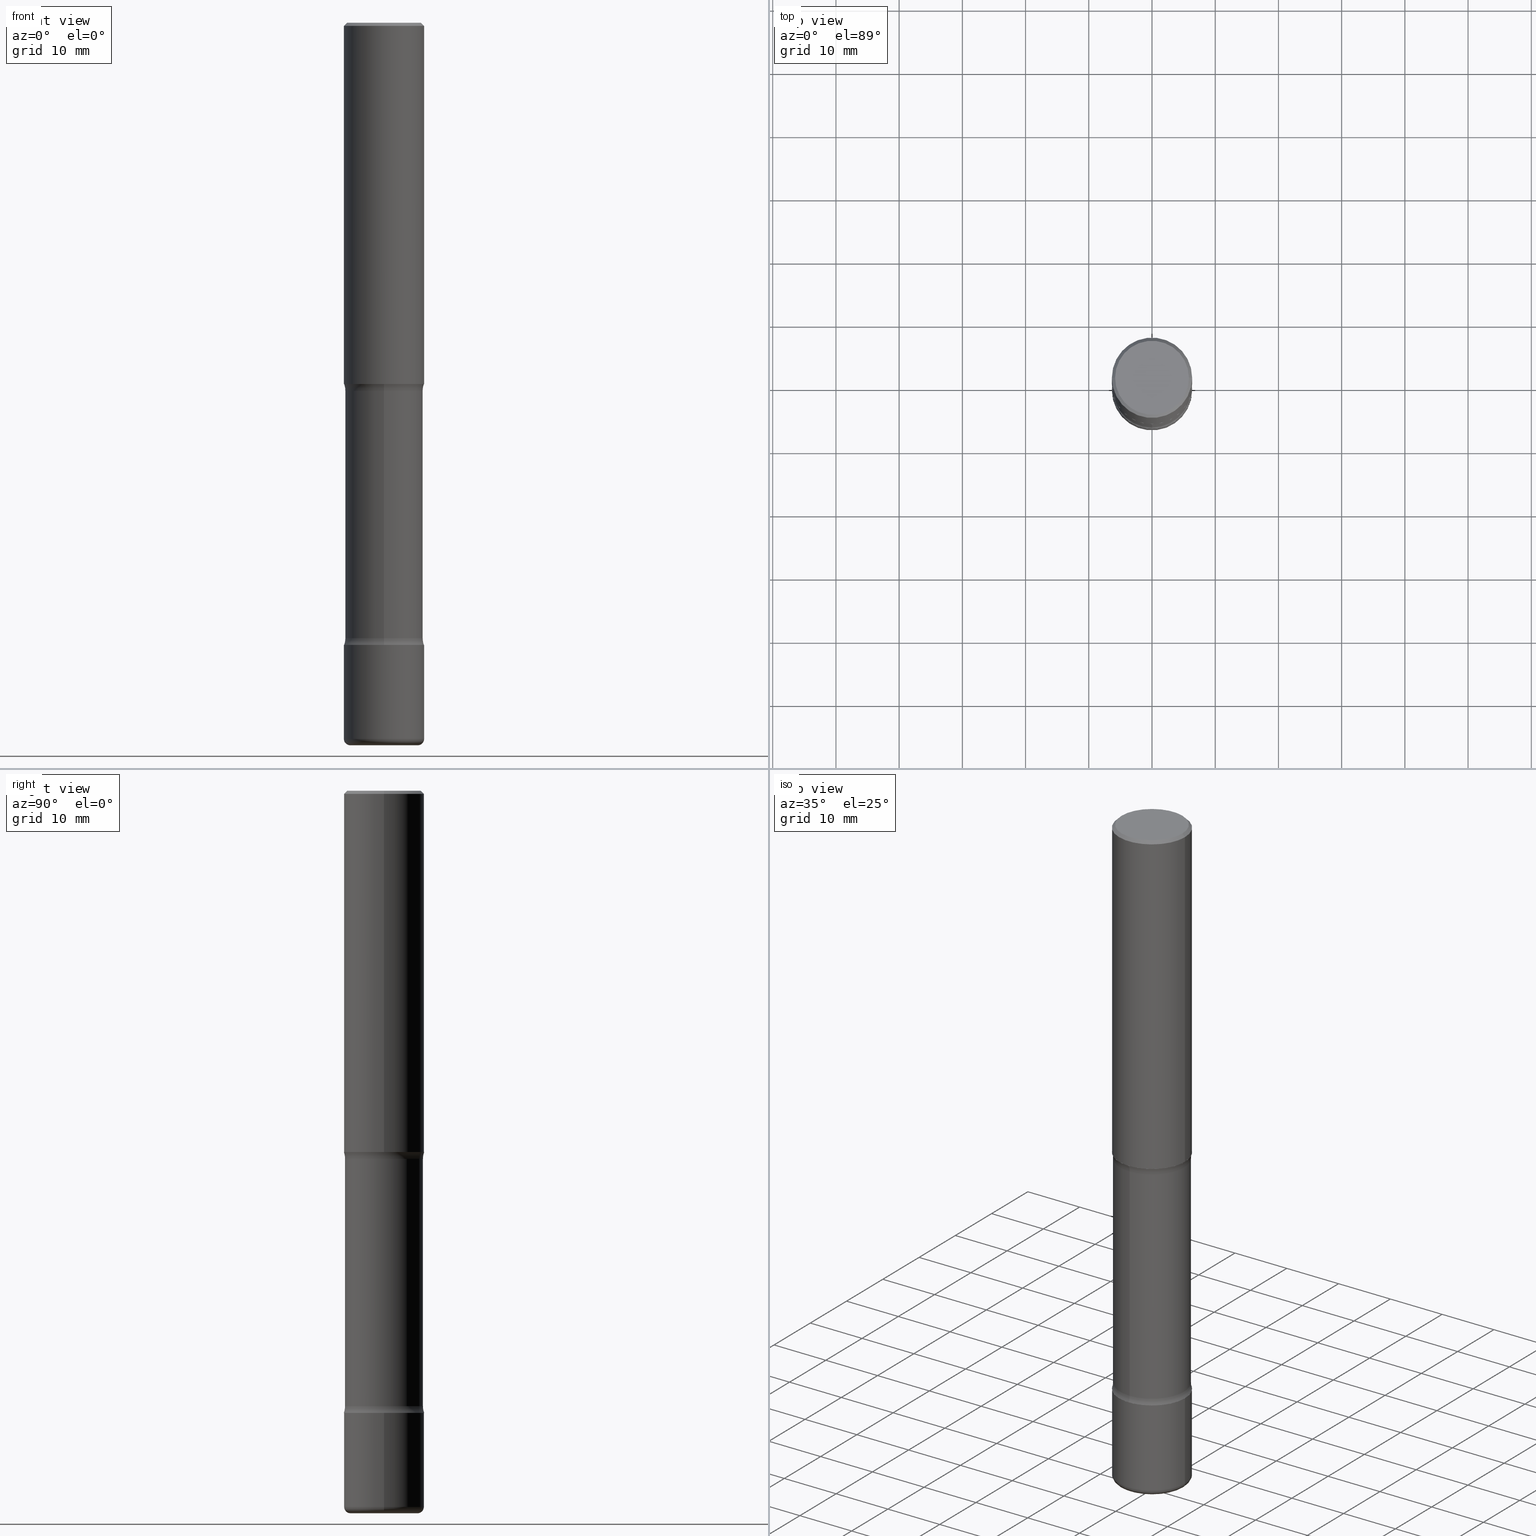
[diagram: canonical four-view strip — front | top / right | iso, engineering-drawing reading convention]
A machine part, canonical four-view strip (front | top / right | iso — engineering-drawing reading convention). The complete STEP part file that produces these views, byte-faithful:
ISO-10303-21;
HEADER;
FILE_DESCRIPTION (( 'STEP AP203' ),
    '1' );
FILE_NAME ('36787.STEP',
    '2024-03-02T00:02:37',
    ( '' ),
    ( '' ),
    'SwSTEP 2.0',
    'SolidWorks 2023',
    '' );
FILE_SCHEMA (( 'CONFIG_CONTROL_DESIGN' ));
ENDSEC;

DATA;
#1 = ORIENTED_EDGE ( 'NONE', *, *, #154, .T. ) ;
#2 = DIRECTION ( 'NONE',  ( -1.000000000000000000, 6.982962677686265922E-15, -4.876176775795935793E-29 ) ) ;
#3 = APPROVAL ( #60, 'UNSPECIFIED' ) ;
#4 = COORDINATED_UNIVERSAL_TIME_OFFSET ( 5, 0, .BEHIND. ) ;
#5 = CARTESIAN_POINT ( 'NONE',  ( 5.320450357182282484E-29, -8.414510736218954380E-15, -2.292646805273080179 ) ) ;
#6 = CLOSED_SHELL ( 'NONE', ( #24, #369, #134, #465, #235, #65 ) ) ;
#7 = AXIS2_PLACEMENT_3D ( 'NONE', #491, #105, #68 ) ;
#8 = EDGE_LOOP ( 'NONE', ( #426, #559, #440, #49 ) ) ;
#9 = PERSON_AND_ORGANIZATION_ROLE ( 'creator' ) ;
#10 = CARTESIAN_POINT ( 'NONE',  ( 9.363764719991543116E-29, -1.339224012218709560E-14, -3.832353194726919376 ) ) ;
#11 = ORIENTED_EDGE ( 'NONE', *, *, #502, .F. ) ;
#12 = COORDINATED_UNIVERSAL_TIME_OFFSET ( 5, 0, .BEHIND. ) ;
#13 = APPLICATION_CONTEXT ( 'configuration controlled 3d designs of mechanical parts and assemblies' ) ;
#14 = EDGE_LOOP ( 'NONE', ( #254, #92, #415, #224 ) ) ;
#15 = DIRECTION ( 'NONE',  ( 2.636232731993832963E-29, -3.218296539476719458E-15, -1.000000000000000000 ) ) ;
#16 = PERSON_AND_ORGANIZATION ( #231, #23 ) ;
#17 = DIRECTION ( 'NONE',  ( 1.000000000000000000, -6.982962677686265922E-15, 4.876176775795935793E-29 ) ) ;
#18 = CLOSED_SHELL ( 'NONE', ( #401, #363, #109, #371, #342, #302 ) ) ;
#19 = ORIENTED_EDGE ( 'NONE', *, *, #470, .F. ) ;
#20 = ADVANCED_FACE ( 'NONE', ( #144 ), #56, .F. ) ;
#21 = AXIS2_PLACEMENT_3D ( 'NONE', #211, #388, #265 ) ;
#22 = CIRCLE ( 'NONE', #173, 0.2500000000000000555 ) ;
#23 = ORGANIZATION ( 'UNSPECIFIED', 'UNSPECIFIED', '' ) ;
#24 = ADVANCED_FACE ( 'NONE', ( #71 ), #364, .T. ) ;
#25 = ORIENTED_EDGE ( 'NONE', *, *, #296, .F. ) ;
#26 = CYLINDRICAL_SURFACE ( 'NONE', #288, 0.2500000000000000555 ) ;
#27 = LINE ( 'NONE', #223, #238 ) ;
#28 = EDGE_LOOP ( 'NONE', ( #230, #312, #317, #188 ) ) ;
#29 = DIRECTION ( 'NONE',  ( 1.000000000000000000, -6.982962677686266711E-15, 4.883557194083112901E-29 ) ) ;
#30 = CARTESIAN_POINT ( 'NONE',  ( 0.000000000000000000, 0.000000000000000000, 0.000000000000000000 ) ) ;
#31 = VECTOR ( 'NONE', #135, 39.37007874015748143 ) ;
#32 = AXIS2_PLACEMENT_3D ( 'NONE', #425, #334, #243 ) ;
#33 = CARTESIAN_POINT ( 'NONE',  ( 5.502304813916556222E-29, -7.855833012397076871E-15, -2.249999999999999556 ) ) ;
#34 = DIRECTION ( 'NONE',  ( -2.445468806185136597E-29, 3.491481338843145583E-15, 1.000000000000000000 ) ) ;
#35 = DIRECTION ( 'NONE',  ( 6.982962677686265922E-15, 1.000000000000000000, -3.218296539476719064E-15 ) ) ;
#36 = UNCERTAINTY_MEASURE_WITH_UNIT (LENGTH_MEASURE( 1.000000000000000082E-05 ), #379, 'distance_accuracy_value', 'NONE');
#37 = DIRECTION ( 'NONE',  ( 2.636232731993832963E-29, -3.218296539476719458E-15, -1.000000000000000000 ) ) ;
#38 = APPLICATION_CONTEXT ( 'configuration controlled 3d designs of mechanical parts and assemblies' ) ;
#39 = CIRCLE ( 'NONE', #116, 0.03999999999999977879 ) ;
#40 = EDGE_LOOP ( 'NONE', ( #221, #1 ) ) ;
#41 =( NAMED_UNIT ( * ) SI_UNIT ( $, .STERADIAN. ) SOLID_ANGLE_UNIT ( ) );
#42 = CARTESIAN_POINT ( 'NONE',  ( -0.2299999999999998435, 1.640996229256271730E-15, -1.135408596578605280E-29 ) ) ;
#43 = DIRECTION ( 'NONE',  ( 6.982962677686265922E-15, 1.000000000000000000, -2.185478394931410180E-15 ) ) ;
#44 = DIRECTION ( 'NONE',  ( 1.000000000000000000, -6.982962677686269077E-15, 0.000000000000000000 ) ) ;
#45 = PRODUCT_RELATED_PRODUCT_CATEGORY ( 'detail', '', ( #395 ) ) ;
#46 = CARTESIAN_POINT ( 'NONE',  ( 1.090679087558570850E-28, -1.557200677124043030E-14, -4.459999999999999964 ) ) ;
#47 = AXIS2_PLACEMENT_3D ( 'NONE', #143, #316, #220 ) ;
#48 = VECTOR ( 'NONE', #81, 39.37007874015748143 ) ;
#49 = ORIENTED_EDGE ( 'NONE', *, *, #380, .F. ) ;
#50 = PLANE ( 'NONE',  #21 ) ;
#51 = VERTEX_POINT ( 'NONE', #321 ) ;
#52 = EDGE_CURVE ( 'NONE', #524, #446, #418, .T. ) ;
#53 = CARTESIAN_POINT ( 'NONE',  ( 0.2500000000000000000, -1.745740669421566678E-15, 1.219044193948983948E-29 ) ) ;
#54 = VERTEX_POINT ( 'NONE', #200 ) ;
#55 = CALENDAR_DATE ( 2024, 1, 3 ) ;
#56 = TOROIDAL_SURFACE ( 'NONE', #120, 0.3675000000000003264, 0.1250000000000000555 ) ;
#57 = CONICAL_SURFACE ( 'NONE', #366, 0.2499999999999998890, 0.7853981633974480570 ) ;
#58 = ORIENTED_EDGE ( 'NONE', *, *, #154, .F. ) ;
#59 = PRODUCT_DEFINITION_FORMATION_WITH_SPECIFIED_SOURCE ( 'ANY', '', #395, .NOT_KNOWN. ) ;
#60 = APPROVAL_STATUS ( 'not_yet_approved' ) ;
#61 = CARTESIAN_POINT ( 'NONE',  ( -0.2500000000000000555, 1.776356839400250859E-15, -1.229733772563726866E-29 ) ) ;
#62 = EDGE_LOOP ( 'NONE', ( #536, #19 ) ) ;
#63 = COORDINATED_UNIVERSAL_TIME_OFFSET ( 5, 0, .BEHIND. ) ;
#64 = FACE_OUTER_BOUND ( 'NONE', #62, .T. ) ;
#65 = ADVANCED_FACE ( 'NONE', ( #73 ), #195, .T. ) ;
#66 = ORIENTED_EDGE ( 'NONE', *, *, #168, .T. ) ;
#67 = DIRECTION ( 'NONE',  ( 0.000000000000000000, 0.000000000000000000, 1.000000000000000000 ) ) ;
#68 = DIRECTION ( 'NONE',  ( 1.000000000000000000, -6.982962677686265922E-15, 0.000000000000000000 ) ) ;
#69 = DIRECTION ( 'NONE',  ( 2.636232731993832963E-29, -3.218296539476719458E-15, -1.000000000000000000 ) ) ;
#70 = CARTESIAN_POINT ( 'NONE',  ( 0.2500000000000001110, -9.601573681818645126E-15, -2.249999999999999556 ) ) ;
#71 = FACE_OUTER_BOUND ( 'NONE', #331, .T. ) ;
#72 = LINE ( 'NONE', #537, #328 ) ;
#73 = FACE_OUTER_BOUND ( 'NONE', #387, .T. ) ;
#74 = FACE_OUTER_BOUND ( 'NONE', #435, .T. ) ;
#75 = FACE_OUTER_BOUND ( 'NONE', #458, .T. ) ;
#76 = AXIS2_PLACEMENT_3D ( 'NONE', #343, #518, #386 ) ;
#77 = AXIS2_PLACEMENT_3D ( 'NONE', #390, #67, #304 ) ;
#78 = DIRECTION ( 'NONE',  ( -2.445468806185136597E-29, 3.491481338843145583E-15, 1.000000000000000000 ) ) ;
#79 = EDGE_CURVE ( 'NONE', #179, #51, #336, .T. ) ;
#80 = CARTESIAN_POINT ( 'NONE',  ( -2.521233014180945442E-15, -0.3675000000000136491, -3.832353194726918488 ) ) ;
#81 = DIRECTION ( 'NONE',  ( 2.636232731993832963E-29, -3.218296539476719458E-15, -1.000000000000000000 ) ) ;
#82 = FACE_OUTER_BOUND ( 'NONE', #308, .T. ) ;
#83 =( NAMED_UNIT ( * ) PLANE_ANGLE_UNIT ( ) SI_UNIT ( $, .RADIAN. ) );
#84 = EDGE_CURVE ( 'NONE', #140, #54, #111, .T. ) ;
#85 = DIRECTION ( 'NONE',  ( -2.445468806185136597E-29, 3.491481338843145583E-15, 1.000000000000000000 ) ) ;
#86 = EDGE_LOOP ( 'NONE', ( #273, #403 ) ) ;
#87 = CARTESIAN_POINT ( 'NONE',  ( -1.689397631951189894E-15, -0.2425000000000088196, -2.292646805273079735 ) ) ;
#88 = CIRCLE ( 'NONE', #410, 0.2425000000000003542 ) ;
#89 = AXIS2_PLACEMENT_3D ( 'NONE', #459, #501, #234 ) ;
#90 = ORIENTED_EDGE ( 'NONE', *, *, #138, .F. ) ;
#91 = DIRECTION ( 'NONE',  ( 2.445468806185136597E-29, -3.491481338843145583E-15, -1.000000000000000000 ) ) ;
#92 = ORIENTED_EDGE ( 'NONE', *, *, #269, .T. ) ;
#93 = PERSON_AND_ORGANIZATION ( #231, #23 ) ;
#94 = ORIENTED_EDGE ( 'NONE', *, *, #138, .T. ) ;
#95 = CALENDAR_DATE ( 2024, 1, 3 ) ;
#96 = DIRECTION ( 'NONE',  ( -2.445468806185136597E-29, 3.491481338843145583E-15, 1.000000000000000000 ) ) ;
#97 = TOROIDAL_SURFACE ( 'NONE', #384, 0.3675000000000003264, 0.1250000000000000555 ) ;
#98 = VERTEX_POINT ( 'NONE', #434 ) ;
#99 = AXIS2_PLACEMENT_3D ( 'NONE', #80, #471, #551 ) ;
#100 = EDGE_CURVE ( 'NONE', #412, #498, #202, .T. ) ;
#101 = DATE_AND_TIME ( #349, #141 ) ;
#102 = ADVANCED_FACE ( 'NONE', ( #383 ), #541, .F. ) ;
#103 = ORIENTED_EDGE ( 'NONE', *, *, #372, .T. ) ;
#104 = APPLICATION_PROTOCOL_DEFINITION ( 'international standard', 'config_control_design', 1994, #38 ) ;
#105 = DIRECTION ( 'NONE',  ( -2.445468806185136597E-29, 3.491481338843145583E-15, 1.000000000000000000 ) ) ;
#106 = CARTESIAN_POINT ( 'NONE',  ( 0.000000000000000000, 0.000000000000000000, 0.000000000000000000 ) ) ;
#107 = DATE_AND_TIME ( #95, #157 ) ;
#108 = DIRECTION ( 'NONE',  ( 1.000000000000000000, -6.982962677686265922E-15, 0.000000000000000000 ) ) ;
#109 = ADVANCED_FACE ( 'NONE', ( #82 ), #510, .T. ) ;
#110 = EDGE_LOOP ( 'NONE', ( #488, #552, #520, #305 ) ) ;
#111 = CIRCLE ( 'NONE', #139, 0.1250000000000000278 ) ;
#112 = CYLINDRICAL_SURFACE ( 'NONE', #533, 0.2500000000000000555 ) ;
#113 = CARTESIAN_POINT ( 'NONE',  ( 9.363764719991543116E-29, -1.339224012218709560E-14, -3.832353194726919376 ) ) ;
#114 = DIRECTION ( 'NONE',  ( -1.000000000000000000, 6.982962677686266711E-15, 0.000000000000000000 ) ) ;
#115 = CARTESIAN_POINT ( 'NONE',  ( 4.890937612370289799E-31, -6.982962677686315028E-17, -0.02000000000000006981 ) ) ;
#116 = AXIS2_PLACEMENT_3D ( 'NONE', #229, #414, #268 ) ;
#117 = DIRECTION ( 'NONE',  ( 1.000000000000000000, -6.982962677686267499E-15, 4.876176775795935793E-29 ) ) ;
#118 = ORIENTED_EDGE ( 'NONE', *, *, #338, .T. ) ;
#119 = ORIENTED_EDGE ( 'NONE', *, *, #269, .F. ) ;
#120 = AXIS2_PLACEMENT_3D ( 'NONE', #464, #244, #35 ) ;
#121 = AXIS2_PLACEMENT_3D ( 'NONE', #192, #153, #29 ) ;
#122 = CARTESIAN_POINT ( 'NONE',  ( 1.100460962783311244E-28, -1.571166602479415374E-14, -4.499999999999999112 ) ) ;
#123 = CIRCLE ( 'NONE', #367, 0.2500000000000004996 ) ;
#124 = DIRECTION ( 'NONE',  ( -2.445468806185136597E-29, 3.491481338843145583E-15, 1.000000000000000000 ) ) ;
#125 = MANIFOLD_SOLID_BREP ( 'Body-Move/Copy2[1]', #18 ) ;
#126 = DIRECTION ( 'NONE',  ( 2.438088387897960049E-29, -3.491481338843145188E-15, -1.000000000000000000 ) ) ;
#127 = DIRECTION ( 'NONE',  ( -6.982962677686265922E-15, -1.000000000000000000, 3.218296539476719458E-15 ) ) ;
#128 = EDGE_LOOP ( 'NONE', ( #509, #90, #270, #66 ) ) ;
#129 = DIRECTION ( 'NONE',  ( -1.000000000000000000, 6.982962677686265922E-15, -4.876176775795935793E-29 ) ) ;
#130 = AXIS2_PLACEMENT_3D ( 'NONE', #106, #149, #508 ) ;
#131 = EDGE_LOOP ( 'NONE', ( #94, #147, #389, #263 ) ) ;
#132 = PERSON_AND_ORGANIZATION ( #231, #23 ) ;
#133 = VERTEX_POINT ( 'NONE', #381 ) ;
#134 = ADVANCED_FACE ( 'NONE', ( #428 ), #427, .T. ) ;
#135 = DIRECTION ( 'NONE',  ( -2.445468806185136877E-29, 3.491481338843145188E-15, 1.000000000000000000 ) ) ;
#136 = VERTEX_POINT ( 'NONE', #339 ) ;
#137 = APPROVAL ( #490, 'UNSPECIFIED' ) ;
#138 = EDGE_CURVE ( 'NONE', #133, #140, #216, .T. ) ;
#139 = AXIS2_PLACEMENT_3D ( 'NONE', #161, #252, #472 ) ;
#140 = VERTEX_POINT ( 'NONE', #87 ) ;
#141 = LOCAL_TIME ( 19, 2, 37.00000000000000000, #215 ) ;
#142 = CARTESIAN_POINT ( 'NONE',  ( 5.502304813916556222E-29, -7.855833012397076871E-15, -2.249999999999999556 ) ) ;
#143 = CARTESIAN_POINT ( 'NONE',  ( 1.112383708146354942E-28, -1.554092552519013667E-14, -4.499999999999999112 ) ) ;
#144 = FACE_OUTER_BOUND ( 'NONE', #8, .T. ) ;
#145 = DATE_AND_TIME ( #55, #320 ) ;
#146 = EDGE_CURVE ( 'NONE', #408, #185, #497, .T. ) ;
#147 = ORIENTED_EDGE ( 'NONE', *, *, #502, .T. ) ;
#148 = DIRECTION ( 'NONE',  ( 0.7071067811865473507, -7.319954787623256045E-15, -0.7071067811865476838 ) ) ;
#149 = DIRECTION ( 'NONE',  ( -2.445468806185136597E-29, 3.491481338843145583E-15, 1.000000000000000000 ) ) ;
#150 = AXIS2_PLACEMENT_3D ( 'NONE', #374, #549, #159 ) ;
#151 = TOROIDAL_SURFACE ( 'NONE', #394, 0.3675000000000001599, 0.1250000000000001110 ) ;
#152 = CARTESIAN_POINT ( 'NONE',  ( 0.000000000000000000, 0.000000000000000000, 0.000000000000000000 ) ) ;
#153 = DIRECTION ( 'NONE',  ( -2.445468806185136597E-29, 3.491481338843145583E-15, 1.000000000000000000 ) ) ;
#154 = EDGE_CURVE ( 'NONE', #51, #179, #467, .T. ) ;
#155 = CARTESIAN_POINT ( 'NONE',  ( 9.476191623967404313E-29, -1.352949018801718751E-14, -3.874999999999999556 ) ) ;
#156 = CIRCLE ( 'NONE', #556, 0.2500000000000001110 ) ;
#157 = LOCAL_TIME ( 19, 2, 37.00000000000000000, #63 ) ;
#158 = EDGE_LOOP ( 'NONE', ( #266, #351, #354, #214 ) ) ;
#159 = DIRECTION ( 'NONE',  ( 1.000000000000000000, -6.982962677686266711E-15, 4.876176775795935793E-29 ) ) ;
#160 = DIRECTION ( 'NONE',  ( 1.000000000000000000, -6.982962677686266711E-15, 0.000000000000000000 ) ) ;
#161 = CARTESIAN_POINT ( 'NONE',  ( -2.521233014180986068E-15, -0.3675000000000087086, -2.292646805273079291 ) ) ;
#162 = CARTESIAN_POINT ( 'NONE',  ( 4.890937612370289799E-31, -6.982962677686315028E-17, -0.02000000000000006981 ) ) ;
#163 = AXIS2_PLACEMENT_3D ( 'NONE', #122, #126, #129 ) ;
#164 = DIRECTION ( 'NONE',  ( 1.000000000000000000, -6.982962677686266711E-15, 4.876176775795935793E-29 ) ) ;
#165 = AXIS2_PLACEMENT_3D ( 'NONE', #413, #34, #329 ) ;
#166 = DIRECTION ( 'NONE',  ( -2.445468806185136597E-29, 3.491481338843145583E-15, 1.000000000000000000 ) ) ;
#167 = VERTEX_POINT ( 'NONE', #560 ) ;
#168 = EDGE_CURVE ( 'NONE', #136, #54, #260, .T. ) ;
#169 = FACE_OUTER_BOUND ( 'NONE', #86, .T. ) ;
#170 = VERTEX_POINT ( 'NONE', #430 ) ;
#171 = PERSON_AND_ORGANIZATION_ROLE ( 'design_owner' ) ;
#172 = DIRECTION ( 'NONE',  ( 2.636232731993832963E-29, -3.218296539476719458E-15, -1.000000000000000000 ) ) ;
#173 = AXIS2_PLACEMENT_3D ( 'NONE', #183, #455, #314 ) ;
#174 = ORIENTED_EDGE ( 'NONE', *, *, #52, .F. ) ;
#175 = ADVANCED_FACE ( 'NONE', ( #207 ), #97, .F. ) ;
#176 = COORDINATED_UNIVERSAL_TIME_OFFSET ( 5, 0, .BEHIND. ) ;
#177 = DIRECTION ( 'NONE',  ( 6.982962677686265922E-15, 1.000000000000000000, -2.253070510238567761E-15 ) ) ;
#178 = EDGE_CURVE ( 'NONE', #392, #446, #461, .T. ) ;
#179 = VERTEX_POINT ( 'NONE', #469 ) ;
#180 = ORIENTED_EDGE ( 'NONE', *, *, #422, .T. ) ;
#181 = FACE_OUTER_BOUND ( 'NONE', #40, .T. ) ;
#182 = APPROVAL_DATE_TIME ( #101, #137 ) ;
#183 = CARTESIAN_POINT ( 'NONE',  ( 9.476191623967404313E-29, -1.352949018801718751E-14, -3.874999999999999556 ) ) ;
#184 = VECTOR ( 'NONE', #264, 39.37007874015748143 ) ;
#185 = VERTEX_POINT ( 'NONE', #42 ) ;
#186 = ORIENTED_EDGE ( 'NONE', *, *, #463, .T. ) ;
#187 = DIRECTION ( 'NONE',  ( 2.636232731993832963E-29, -3.218296539476719458E-15, -1.000000000000000000 ) ) ;
#188 = ORIENTED_EDGE ( 'NONE', *, *, #278, .F. ) ;
#189 = CARTESIAN_POINT ( 'NONE',  ( 0.000000000000000000, 0.000000000000000000, 0.000000000000000000 ) ) ;
#190 = VECTOR ( 'NONE', #325, 39.37007874015748143 ) ;
#191 = CIRCLE ( 'NONE', #282, 0.2299999999999998435 ) ;
#192 = CARTESIAN_POINT ( 'NONE',  ( 1.090679087558570850E-28, -1.557200677124043030E-14, -4.459999999999999964 ) ) ;
#193 = CARTESIAN_POINT ( 'NONE',  ( 1.090679087558570850E-28, -1.557200677124043030E-14, -4.459999999999999964 ) ) ;
#194 = CARTESIAN_POINT ( 'NONE',  ( 0.2100000000000000477, -1.717808818710827038E-14, -4.499999999999999112 ) ) ;
#195 = CYLINDRICAL_SURFACE ( 'NONE', #150, 0.2500000000000000000 ) ;
#196 = DIRECTION ( 'NONE',  ( 6.982962677686265133E-15, 1.000000000000000000, -3.278217592397109157E-15 ) ) ;
#197 = CIRCLE ( 'NONE', #531, 0.2500000000000000555 ) ;
#198 = EDGE_CURVE ( 'NONE', #258, #424, #197, .T. ) ;
#199 = CIRCLE ( 'NONE', #462, 0.2499999999999998890 ) ;
#200 = CARTESIAN_POINT ( 'NONE',  ( -1.715124499442833784E-15, -0.2500000000000087153, -2.249999999999999112 ) ) ;
#201 = DIRECTION ( 'NONE',  ( 2.636232731993832963E-29, -3.218296539476719458E-15, -1.000000000000000000 ) ) ;
#202 = LINE ( 'NONE', #53, #245 ) ;
#203 = CARTESIAN_POINT ( 'NONE',  ( 5.192313434477425678E-29, -8.299758311367519668E-15, -2.249999999999999556 ) ) ;
#204 = CARTESIAN_POINT ( 'NONE',  ( 2.566238784049797206E-15, 0.3674999999999867262, -3.832353194726920709 ) ) ;
#205 = ADVANCED_FACE ( 'NONE', ( #340 ), #516, .F. ) ;
#206 = AXIS2_PLACEMENT_3D ( 'NONE', #555, #437, #431 ) ;
#207 = FACE_OUTER_BOUND ( 'NONE', #128, .T. ) ;
#208 = APPROVAL_PERSON_ORGANIZATION ( #16, #137, #487 ) ;
#209 = ADVANCED_FACE ( 'NONE', ( #169 ), #50, .F. ) ;
#210 = ORIENTED_EDGE ( 'NONE', *, *, #544, .T. ) ;
#211 = CARTESIAN_POINT ( 'NONE',  ( 5.502304813916556222E-29, -7.855833012397076871E-15, -2.249999999999999556 ) ) ;
#212 = ORIENTED_EDGE ( 'NONE', *, *, #52, .T. ) ;
#213 = CARTESIAN_POINT ( 'NONE',  ( 5.192313434477425678E-29, -8.299758311367519668E-15, -2.249999999999999556 ) ) ;
#214 = ORIENTED_EDGE ( 'NONE', *, *, #515, .T. ) ;
#215 = COORDINATED_UNIVERSAL_TIME_OFFSET ( 5, 0, .BEHIND. ) ;
#216 = CIRCLE ( 'NONE', #454, 0.2425000000000003542 ) ;
#217 = CIRCLE ( 'NONE', #542, 0.03999999999999977879 ) ;
#218 = ORIENTED_EDGE ( 'NONE', *, *, #262, .T. ) ;
#219 = PERSON_AND_ORGANIZATION_ROLE ( 'creator' ) ;
#220 = DIRECTION ( 'NONE',  ( 6.982962677686265922E-15, 1.000000000000000000, -2.253070510238566184E-15 ) ) ;
#221 = ORIENTED_EDGE ( 'NONE', *, *, #79, .T. ) ;
#222 = APPROVAL_DATE_TIME ( #522, #293 ) ;
#223 = CARTESIAN_POINT ( 'NONE',  ( -0.2499999999999998890, 1.675911042644702985E-15, -0.02000000000000006981 ) ) ;
#224 = ORIENTED_EDGE ( 'NONE', *, *, #547, .F. ) ;
#225 = TOROIDAL_SURFACE ( 'NONE', #475, 0.2100000000000000755, 0.03999999999999975797 ) ;
#226 = CC_DESIGN_APPROVAL ( #137, ( #311 ) ) ;
#227 = EDGE_LOOP ( 'NONE', ( #476, #180, #303, #58 ) ) ;
#228 = FACE_OUTER_BOUND ( 'NONE', #376, .T. ) ;
#229 = CARTESIAN_POINT ( 'NONE',  ( -0.2100000000000000755, -1.407986702614421858E-14, -4.459999999999999964 ) ) ;
#230 = ORIENTED_EDGE ( 'NONE', *, *, #198, .T. ) ;
#231 = PERSON ( 'UNSPECIFIED', 'UNSPECIFIED', 'UNSPECIFIED', ('UNSPECIFIED'), ('UNSPECIFIED'), ('UNSPECIFIED') ) ;
#232 = DIRECTION ( 'NONE',  ( 2.438088387897960049E-29, -3.491481338843145188E-15, -1.000000000000000000 ) ) ;
#233 = EDGE_CURVE ( 'NONE', #446, #524, #280, .T. ) ;
#234 = DIRECTION ( 'NONE',  ( 6.982962677686265922E-15, 1.000000000000000000, -2.253070510238566184E-15 ) ) ;
#235 = ADVANCED_FACE ( 'NONE', ( #64 ), #359, .F. ) ;
#236 = EDGE_CURVE ( 'NONE', #185, #456, #27, .T. ) ;
#237 = EDGE_CURVE ( 'NONE', #170, #438, #310, .T. ) ;
#238 = VECTOR ( 'NONE', #481, 39.37007874015748143 ) ;
#239 = PLANE ( 'NONE',  #468 ) ;
#240 = FACE_OUTER_BOUND ( 'NONE', #14, .T. ) ;
#241 = ORIENTED_EDGE ( 'NONE', *, *, #422, .F. ) ;
#242 = ADVANCED_FACE ( 'NONE', ( #350 ), #407, .T. ) ;
#243 = DIRECTION ( 'NONE',  ( 1.000000000000000000, -6.982962677686266711E-15, 0.000000000000000000 ) ) ;
#244 = DIRECTION ( 'NONE',  ( 2.636232731993832963E-29, -3.218296539476719458E-15, -1.000000000000000000 ) ) ;
#245 = VECTOR ( 'NONE', #253, 39.37007874015748143 ) ;
#246 = DIRECTION ( 'NONE',  ( 1.000000000000000000, -6.982962677686269077E-15, 0.000000000000000000 ) ) ;
#247 = DIRECTION ( 'NONE',  ( -2.445468806185136597E-29, 3.491481338843145583E-15, 1.000000000000000000 ) ) ;
#248 = CC_DESIGN_PERSON_AND_ORGANIZATION_ASSIGNMENT ( #93, #219, ( #402 ) ) ;
#249 = DIMENSIONAL_EXPONENTS ( 1.000000000000000000, 0.000000000000000000, 0.000000000000000000, 0.000000000000000000, 0.000000000000000000, 0.000000000000000000, 0.000000000000000000 ) ;
#250 = AXIS2_PLACEMENT_3D ( 'NONE', #271, #532, #2 ) ;
#251 = AXIS2_PLACEMENT_3D ( 'NONE', #213, #290, #391 ) ;
#252 = DIRECTION ( 'NONE',  ( 1.000000000000000000, -6.860497997771530774E-15, 4.844144428525341329E-29 ) ) ;
#253 = DIRECTION ( 'NONE',  ( -2.445468806185136877E-29, 3.491481338843145188E-15, 1.000000000000000000 ) ) ;
#254 = ORIENTED_EDGE ( 'NONE', *, *, #276, .T. ) ;
#255 = CC_DESIGN_DATE_AND_TIME_ASSIGNMENT ( #107, #358, ( #402 ) ) ;
#256 = PERSON_AND_ORGANIZATION_ROLE ( 'design_supplier' ) ;
#257 = CARTESIAN_POINT ( 'NONE',  ( 1.100460962783311244E-28, -1.571166602479415374E-14, -4.499999999999999112 ) ) ;
#258 = VERTEX_POINT ( 'NONE', #444 ) ;
#259 = MECHANICAL_CONTEXT ( 'NONE', #38, 'mechanical' ) ;
#260 = CIRCLE ( 'NONE', #251, 0.2500000000000004996 ) ;
#261 = AXIS2_PLACEMENT_3D ( 'NONE', #33, #539, #546 ) ;
#262 = EDGE_CURVE ( 'NONE', #167, #392, #22, .T. ) ;
#263 = ORIENTED_EDGE ( 'NONE', *, *, #372, .F. ) ;
#264 = DIRECTION ( 'NONE',  ( -2.445468806185136877E-29, 3.491481338843145188E-15, 1.000000000000000000 ) ) ;
#265 = DIRECTION ( 'NONE',  ( 6.982962677686265922E-15, 1.000000000000000000, -3.218296539476719458E-15 ) ) ;
#266 = ORIENTED_EDGE ( 'NONE', *, *, #463, .F. ) ;
#267 = APPROVAL_ROLE ( '' ) ;
#268 = DIRECTION ( 'NONE',  ( -1.000000000000000000, 7.105427357601014480E-15, 0.000000000000000000 ) ) ;
#269 = EDGE_CURVE ( 'NONE', #170, #424, #39, .T. ) ;
#270 = ORIENTED_EDGE ( 'NONE', *, *, #380, .T. ) ;
#271 = CARTESIAN_POINT ( 'NONE',  ( 9.476191623967404313E-29, -1.352949018801718751E-14, -3.874999999999999556 ) ) ;
#272 = CIRCLE ( 'NONE', #7, 0.2100000000000000477 ) ;
#273 = ORIENTED_EDGE ( 'NONE', *, *, #168, .F. ) ;
#274 = DIRECTION ( 'NONE',  ( 1.000000000000000000, -6.982962677686266711E-15, 4.876176775795935793E-29 ) ) ;
#275 = DIRECTION ( 'NONE',  ( 6.982962677686265922E-15, 1.000000000000000000, -2.253070510238567761E-15 ) ) ;
#276 = EDGE_CURVE ( 'NONE', #438, #170, #272, .T. ) ;
#277 = CARTESIAN_POINT ( 'NONE',  ( 1.693368449339031617E-15, 0.2424999999999846167, -4.500000000000000000 ) ) ;
#278 = EDGE_CURVE ( 'NONE', #258, #179, #362, .T. ) ;
#279 = CARTESIAN_POINT ( 'NONE',  ( -0.2499999999999999167, -1.379564993184017984E-14, -4.459999999999999964 ) ) ;
#280 = CIRCLE ( 'NONE', #441, 0.2424999999999999656 ) ;
#281 = DESIGN_CONTEXT ( 'detailed design', #13, 'design' ) ;
#282 = AXIS2_PLACEMENT_3D ( 'NONE', #152, #365, #274 ) ;
#283 = CARTESIAN_POINT ( 'NONE',  ( 1.745740669421661735E-15, 0.2499999999999865108, -3.875000000000000000 ) ) ;
#284 = LINE ( 'NONE', #277, #190 ) ;
#285 = ORIENTED_EDGE ( 'NONE', *, *, #262, .F. ) ;
#286 = CARTESIAN_POINT ( 'NONE',  ( -1.663670764459486050E-15, -0.2425000000000156752, -4.499999999999999112 ) ) ;
#287 = CARTESIAN_POINT ( 'NONE',  ( 4.890937612370289799E-31, -6.982962677686315028E-17, -0.02000000000000006981 ) ) ;
#288 = AXIS2_PLACEMENT_3D ( 'NONE', #30, #322, #545 ) ;
#289 = LOCAL_TIME ( 19, 2, 37.00000000000000000, #4 ) ;
#290 = DIRECTION ( 'NONE',  ( 2.636232731993832963E-29, -3.218296539476719458E-15, -1.000000000000000000 ) ) ;
#291 = EDGE_CURVE ( 'NONE', #424, #51, #307, .T. ) ;
#292 = DIRECTION ( 'NONE',  ( 1.000000000000000000, -6.982962677686274599E-15, 0.000000000000000000 ) ) ;
#293 = APPROVAL ( #400, 'UNSPECIFIED' ) ;
#294 = EDGE_CURVE ( 'NONE', #140, #133, #88, .T. ) ;
#295 = DIRECTION ( 'NONE',  ( -1.000000000000000000, 6.982962677686266711E-15, 0.000000000000000000 ) ) ;
#296 = EDGE_CURVE ( 'NONE', #98, #456, #521, .T. ) ;
#297 = DIRECTION ( 'NONE',  ( -1.000000000000000000, 6.982962677686265922E-15, -4.883557194083112340E-29 ) ) ;
#298 = ORIENTED_EDGE ( 'NONE', *, *, #276, .F. ) ;
#299 = AXIS2_PLACEMENT_3D ( 'NONE', #204, #297, #347 ) ;
#300 = CC_DESIGN_APPROVAL ( #3, ( #402 ) ) ;
#301 = CARTESIAN_POINT ( 'NONE',  ( 5.304740338453287996E-29, -8.437008377197611572E-15, -2.292646805273080179 ) ) ;
#302 = ADVANCED_FACE ( 'NONE', ( #181 ), #493, .F. ) ;
#303 = ORIENTED_EDGE ( 'NONE', *, *, #278, .T. ) ;
#304 = DIRECTION ( 'NONE',  ( 1.000000000000000000, 0.000000000000000000, 0.000000000000000000 ) ) ;
#305 = ORIENTED_EDGE ( 'NONE', *, *, #233, .T. ) ;
#306 = DATE_AND_TIME ( #483, #289 ) ;
#307 = LINE ( 'NONE', #61, #319 ) ;
#308 = EDGE_LOOP ( 'NONE', ( #298, #378 ) ) ;
#309 = APPLICATION_PROTOCOL_DEFINITION ( 'international standard', 'config_control_design', 1994, #13 ) ;
#310 = CIRCLE ( 'NONE', #326, 0.2100000000000000477 ) ;
#311 = SECURITY_CLASSIFICATION ( '', '', #447 ) ;
#312 = ORIENTED_EDGE ( 'NONE', *, *, #291, .T. ) ;
#313 = DIRECTION ( 'NONE',  ( 1.000000000000000000, -6.982962677686267499E-15, 0.000000000000000000 ) ) ;
#314 = DIRECTION ( 'NONE',  ( 6.982962677686265922E-15, 1.000000000000000000, -2.185478394931410180E-15 ) ) ;
#315 = ORIENTED_EDGE ( 'NONE', *, *, #294, .T. ) ;
#316 = DIRECTION ( 'NONE',  ( 2.636232731993832963E-29, -3.218296539476719458E-15, -1.000000000000000000 ) ) ;
#317 = ORIENTED_EDGE ( 'NONE', *, *, #79, .F. ) ;
#318 = CARTESIAN_POINT ( 'NONE',  ( 1.606081415867840081E-15, 0.2299999999999998435, -8.030407079339229002E-16 ) ) ;
#319 = VECTOR ( 'NONE', #409, 39.37007874015748143 ) ;
#320 = LOCAL_TIME ( 19, 2, 37.00000000000000000, #176 ) ;
#321 = CARTESIAN_POINT ( 'NONE',  ( -0.2500000000000000555, -1.277439164022855686E-14, -3.874999999999999556 ) ) ;
#322 = DIRECTION ( 'NONE',  ( -2.445468806185136597E-29, 3.491481338843145583E-15, 1.000000000000000000 ) ) ;
#323 = MANIFOLD_SOLID_BREP ( 'Body-Move/Copy2[4]', #540 ) ;
#324 = CYLINDRICAL_SURFACE ( 'NONE', #89, 0.2425000000000001321 ) ;
#325 = DIRECTION ( 'NONE',  ( 2.636232731993832963E-29, -3.218296539476719458E-15, -1.000000000000000000 ) ) ;
#326 = AXIS2_PLACEMENT_3D ( 'NONE', #257, #96, #108 ) ;
#327 = AXIS2_PLACEMENT_3D ( 'NONE', #155, #37, #43 ) ;
#328 = VECTOR ( 'NONE', #148, 39.37007874015748143 ) ;
#329 = DIRECTION ( 'NONE',  ( 1.000000000000000000, -6.982962677686269077E-15, 0.000000000000000000 ) ) ;
#330 = EDGE_LOOP ( 'NONE', ( #119, #479, #356, #241 ) ) ;
#331 = EDGE_LOOP ( 'NONE', ( #118, #344, #452, #495 ) ) ;
#332 = DIRECTION ( 'NONE',  ( -6.982962677686266711E-15, -1.000000000000000000, 3.491481338843145583E-15 ) ) ;
#333 = CARTESIAN_POINT ( 'NONE',  ( 9.476191623967404313E-29, -1.352949018801718751E-14, -3.874999999999999556 ) ) ;
#334 = DIRECTION ( 'NONE',  ( -2.445468806185136597E-29, 3.491481338843145583E-15, 1.000000000000000000 ) ) ;
#335 = CC_DESIGN_PERSON_AND_ORGANIZATION_ASSIGNMENT ( #396, #256, ( #59 ) ) ;
#336 = CIRCLE ( 'NONE', #76, 0.2500000000000000555 ) ;
#337 = CIRCLE ( 'NONE', #327, 0.2500000000000000555 ) ;
#338 = EDGE_CURVE ( 'NONE', #412, #98, #156, .T. ) ;
#339 = CARTESIAN_POINT ( 'NONE',  ( 1.745740669421622095E-15, 0.2499999999999922007, -2.250000000000000444 ) ) ;
#340 = FACE_OUTER_BOUND ( 'NONE', #341, .T. ) ;
#341 = EDGE_LOOP ( 'NONE', ( #492, #218 ) ) ;
#342 = ADVANCED_FACE ( 'NONE', ( #489 ), #26, .T. ) ;
#343 = CARTESIAN_POINT ( 'NONE',  ( 9.476191623967404313E-29, -1.352949018801718751E-14, -3.874999999999999556 ) ) ;
#344 = ORIENTED_EDGE ( 'NONE', *, *, #296, .T. ) ;
#345 = AXIS2_PLACEMENT_3D ( 'NONE', #397, #535, #17 ) ;
#346 = PERSON_AND_ORGANIZATION ( #231, #23 ) ;
#347 = DIRECTION ( 'NONE',  ( -6.982962677686264344E-15, -1.000000000000000000, 0.000000000000000000 ) ) ;
#348 = ORIENTED_EDGE ( 'NONE', *, *, #470, .T. ) ;
#349 = CALENDAR_DATE ( 2024, 1, 3 ) ;
#350 = FACE_OUTER_BOUND ( 'NONE', #530, .T. ) ;
#351 = ORIENTED_EDGE ( 'NONE', *, *, #404, .F. ) ;
#352 = CARTESIAN_POINT ( 'NONE',  ( -0.2500000000000000000, 1.776356839400250465E-15, -1.229733772563726445E-29 ) ) ;
#353 = APPROVAL_ROLE ( '' ) ;
#354 = ORIENTED_EDGE ( 'NONE', *, *, #236, .T. ) ;
#355 = CC_DESIGN_APPROVAL ( #293, ( #59 ) ) ;
#356 = ORIENTED_EDGE ( 'NONE', *, *, #547, .T. ) ;
#357 = DIRECTION ( 'NONE',  ( 6.982962677686265922E-15, 1.000000000000000000, -3.379605765357846317E-15 ) ) ;
#358 = DATE_TIME_ROLE ( 'creation_date' ) ;
#359 = PLANE ( 'NONE',  #345 ) ;
#360 = ORIENTED_EDGE ( 'NONE', *, *, #146, .T. ) ;
#361 = CARTESIAN_POINT ( 'NONE',  ( 2.566238784049758552E-15, 0.3674999999999918887, -2.292646805273081512 ) ) ;
#362 = LINE ( 'NONE', #526, #31 ) ;
#363 = ADVANCED_FACE ( 'NONE', ( #240 ), #225, .T. ) ;
#364 = CYLINDRICAL_SURFACE ( 'NONE', #130, 0.2500000000000000000 ) ;
#365 = DIRECTION ( 'NONE',  ( -2.445468806185136597E-29, 3.491481338843145583E-15, 1.000000000000000000 ) ) ;
#366 = AXIS2_PLACEMENT_3D ( 'NONE', #115, #373, #114 ) ;
#367 = AXIS2_PLACEMENT_3D ( 'NONE', #203, #201, #196 ) ;
#368 = DIRECTION ( 'NONE',  ( -6.982962677686267499E-15, -1.000000000000000000, 0.000000000000000000 ) ) ;
#369 = ADVANCED_FACE ( 'NONE', ( #74 ), #57, .T. ) ;
#370 = CARTESIAN_POINT ( 'NONE',  ( -0.2499999999999998890, 1.675911042644702985E-15, -0.02000000000000006981 ) ) ;
#371 = ADVANCED_FACE ( 'NONE', ( #416 ), #393, .T. ) ;
#372 = EDGE_CURVE ( 'NONE', #133, #446, #284, .T. ) ;
#373 = DIRECTION ( 'NONE',  ( 2.445468806185136597E-29, -3.491481338843145583E-15, -1.000000000000000000 ) ) ;
#374 = CARTESIAN_POINT ( 'NONE',  ( 0.000000000000000000, 0.000000000000000000, 0.000000000000000000 ) ) ;
#375 = AXIS2_PLACEMENT_3D ( 'NONE', #553, #166, #164 ) ;
#376 = EDGE_LOOP ( 'NONE', ( #285, #484, #212, #517 ) ) ;
#377 = LENGTH_MEASURE_WITH_UNIT ( LENGTH_MEASURE( 0.02539999999999999897 ), #466 );
#378 = ORIENTED_EDGE ( 'NONE', *, *, #237, .F. ) ;
#379 =( CONVERSION_BASED_UNIT ( 'INCH', #377 ) LENGTH_UNIT ( ) NAMED_UNIT ( #249 ) );
#380 = EDGE_CURVE ( 'NONE', #133, #136, #511, .T. ) ;
#381 = CARTESIAN_POINT ( 'NONE',  ( 1.693368449338975016E-15, 0.2424999999999919165, -2.292646805273081068 ) ) ;
#382 = CARTESIAN_POINT ( 'NONE',  ( 0.2100000000000000755, -1.703842893355454379E-14, -4.459999999999999964 ) ) ;
#383 = FACE_OUTER_BOUND ( 'NONE', #110, .T. ) ;
#384 = AXIS2_PLACEMENT_3D ( 'NONE', #5, #172, #558 ) ;
#385 = APPROVAL_PERSON_ORGANIZATION ( #436, #293, #353 ) ;
#386 = DIRECTION ( 'NONE',  ( 1.000000000000000000, -6.982962677686269077E-15, 0.000000000000000000 ) ) ;
#387 = EDGE_LOOP ( 'NONE', ( #25, #348, #482, #398 ) ) ;
#388 = DIRECTION ( 'NONE',  ( 2.636232731993832402E-29, -3.218296539476719458E-15, -1.000000000000000000 ) ) ;
#389 = ORIENTED_EDGE ( 'NONE', *, *, #233, .F. ) ;
#390 = CARTESIAN_POINT ( 'NONE',  ( 0.000000000000000000, 0.000000000000000000, 0.000000000000000000 ) ) ;
#391 = DIRECTION ( 'NONE',  ( 6.982962677686265133E-15, 1.000000000000000000, -3.278217592397109157E-15 ) ) ;
#392 = VERTEX_POINT ( 'NONE', #283 ) ;
#393 = TOROIDAL_SURFACE ( 'NONE', #121, 0.2100000000000000755, 0.03999999999999975797 ) ;
#394 = AXIS2_PLACEMENT_3D ( 'NONE', #457, #187, #417 ) ;
#395 = PRODUCT ( '36787', '36787', '', ( #259 ) ) ;
#396 = PERSON_AND_ORGANIZATION ( #231, #23 ) ;
#397 = CARTESIAN_POINT ( 'NONE',  ( 5.502304813916556222E-29, -7.855833012397076871E-15, -2.249999999999999556 ) ) ;
#398 = ORIENTED_EDGE ( 'NONE', *, *, #515, .F. ) ;
#399 = ADVANCED_FACE ( 'NONE', ( #506 ), #324, .T. ) ;
#400 = APPROVAL_STATUS ( 'not_yet_approved' ) ;
#401 = ADVANCED_FACE ( 'NONE', ( #423 ), #112, .T. ) ;
#402 = PRODUCT_DEFINITION ( 'UNKNOWN', '', #59, #281 ) ;
#403 = ORIENTED_EDGE ( 'NONE', *, *, #500, .F. ) ;
#404 = EDGE_CURVE ( 'NONE', #185, #408, #191, .T. ) ;
#405 = CARTESIAN_POINT ( 'NONE',  ( 5.304740338453287996E-29, -8.437008377197611572E-15, -2.292646805273080179 ) ) ;
#406 = DATE_TIME_ROLE ( 'classification_date' ) ;
#407 = CYLINDRICAL_SURFACE ( 'NONE', #47, 0.2425000000000001321 ) ;
#408 = VERTEX_POINT ( 'NONE', #548 ) ;
#409 = DIRECTION ( 'NONE',  ( -2.445468806185136877E-29, 3.491481338843145188E-15, 1.000000000000000000 ) ) ;
#410 = AXIS2_PLACEMENT_3D ( 'NONE', #405, #15, #357 ) ;
#411 = CIRCLE ( 'NONE', #99, 0.1250000000000001110 ) ;
#412 = VERTEX_POINT ( 'NONE', #70 ) ;
#413 = CARTESIAN_POINT ( 'NONE',  ( 1.090679087558570850E-28, -1.557200677124043030E-14, -4.459999999999999964 ) ) ;
#414 = DIRECTION ( 'NONE',  ( 7.105427357601001859E-15, 1.000000000000000000, -3.491481338843145583E-15 ) ) ;
#415 = ORIENTED_EDGE ( 'NONE', *, *, #198, .F. ) ;
#416 = FACE_OUTER_BOUND ( 'NONE', #330, .T. ) ;
#417 = DIRECTION ( 'NONE',  ( 6.982962677686265922E-15, 1.000000000000000000, -3.218296539476719852E-15 ) ) ;
#418 = CIRCLE ( 'NONE', #505, 0.2424999999999999656 ) ;
#419 = AXIS2_PLACEMENT_3D ( 'NONE', #361, #496, #368 ) ;
#420 = ADVANCED_FACE ( 'NONE', ( #228 ), #151, .F. ) ;
#421 = DIRECTION ( 'NONE',  ( -1.000000000000000000, 6.982962677686265922E-15, -4.876176775795935793E-29 ) ) ;
#422 = EDGE_CURVE ( 'NONE', #424, #258, #433, .T. ) ;
#423 = FACE_OUTER_BOUND ( 'NONE', #28, .T. ) ;
#424 = VERTEX_POINT ( 'NONE', #279 ) ;
#425 = CARTESIAN_POINT ( 'NONE',  ( 4.890937612370289799E-31, -6.982962677686315028E-17, -0.02000000000000006981 ) ) ;
#426 = ORIENTED_EDGE ( 'NONE', *, *, #294, .F. ) ;
#427 = CONICAL_SURFACE ( 'NONE', #485, 0.2499999999999998890, 0.7853981633974480570 ) ;
#428 = FACE_OUTER_BOUND ( 'NONE', #158, .T. ) ;
#429 = CARTESIAN_POINT ( 'NONE',  ( 0.2499999999999998890, -1.784954126219745400E-15, -0.02000000000000006981 ) ) ;
#430 = CARTESIAN_POINT ( 'NONE',  ( -0.2100000000000000477, -1.400758810576906172E-14, -4.499999999999999112 ) ) ;
#431 = DIRECTION ( 'NONE',  ( 6.982962677686265922E-15, 1.000000000000000000, -3.218296539476719852E-15 ) ) ;
#432 = AXIS2_PLACEMENT_3D ( 'NONE', #474, #523, #127 ) ;
#433 = CIRCLE ( 'NONE', #165, 0.2500000000000000555 ) ;
#434 = CARTESIAN_POINT ( 'NONE',  ( -0.2500000000000001110, -2.186474480186716070E-15, -2.249999999999999556 ) ) ;
#435 = EDGE_LOOP ( 'NONE', ( #538, #186, #210, #449 ) ) ;
#436 = PERSON_AND_ORGANIZATION ( #231, #23 ) ;
#437 = DIRECTION ( 'NONE',  ( 2.636232731993832963E-29, -3.218296539476719458E-15, -1.000000000000000000 ) ) ;
#438 = VERTEX_POINT ( 'NONE', #194 ) ;
#439 = PERSON_AND_ORGANIZATION ( #231, #23 ) ;
#440 = ORIENTED_EDGE ( 'NONE', *, *, #500, .T. ) ;
#441 = AXIS2_PLACEMENT_3D ( 'NONE', #10, #448, #177 ) ;
#442 = LOCAL_TIME ( 19, 2, 37.00000000000000000, #12 ) ;
#443 = PERSON_AND_ORGANIZATION ( #231, #23 ) ;
#444 = CARTESIAN_POINT ( 'NONE',  ( 0.2499999999999999167, -1.731774744066199698E-14, -4.459999999999999964 ) ) ;
#445 = CC_DESIGN_PERSON_AND_ORGANIZATION_ASSIGNMENT ( #439, #171, ( #395 ) ) ;
#446 = VERTEX_POINT ( 'NONE', #460 ) ;
#447 = SECURITY_CLASSIFICATION_LEVEL ( 'unclassified' ) ;
#448 = DIRECTION ( 'NONE',  ( 2.636232731993832963E-29, -3.218296539476719458E-15, -1.000000000000000000 ) ) ;
#449 = ORIENTED_EDGE ( 'NONE', *, *, #236, .F. ) ;
#450 = PRODUCT_DEFINITION_SHAPE ( 'NONE', 'NONE',  #402 ) ;
#451 = CC_DESIGN_DATE_AND_TIME_ASSIGNMENT ( #145, #406, ( #311 ) ) ;
#452 = ORIENTED_EDGE ( 'NONE', *, *, #544, .F. ) ;
#453 = DIRECTION ( 'NONE',  ( -2.445468806185136597E-29, 3.491481338843145583E-15, 1.000000000000000000 ) ) ;
#454 = AXIS2_PLACEMENT_3D ( 'NONE', #301, #514, #478 ) ;
#455 = DIRECTION ( 'NONE',  ( 2.636232731993832963E-29, -3.218296539476719458E-15, -1.000000000000000000 ) ) ;
#456 = VERTEX_POINT ( 'NONE', #370 ) ;
#457 = CARTESIAN_POINT ( 'NONE',  ( 9.324209210536461232E-29, -1.344888586308655779E-14, -3.832353194726919376 ) ) ;
#458 = EDGE_LOOP ( 'NONE', ( #527, #360 ) ) ;
#459 = CARTESIAN_POINT ( 'NONE',  ( 1.112383708146354942E-28, -1.554092552519013667E-14, -4.499999999999999112 ) ) ;
#460 = CARTESIAN_POINT ( 'NONE',  ( 1.693368449339012881E-15, 0.2424999999999865874, -3.832353194726919821 ) ) ;
#461 = CIRCLE ( 'NONE', #299, 0.1250000000000001110 ) ;
#462 = AXIS2_PLACEMENT_3D ( 'NONE', #162, #124, #160 ) ;
#463 = EDGE_CURVE ( 'NONE', #408, #498, #72, .T. ) ;
#464 = CARTESIAN_POINT ( 'NONE',  ( 5.320450357182282484E-29, -8.414510736218954380E-15, -2.292646805273080179 ) ) ;
#465 = ADVANCED_FACE ( 'NONE', ( #75 ), #239, .F. ) ;
#466 =( LENGTH_UNIT ( ) NAMED_UNIT ( * ) SI_UNIT ( $, .METRE. ) );
#467 = CIRCLE ( 'NONE', #519, 0.2500000000000000555 ) ;
#468 = AXIS2_PLACEMENT_3D ( 'NONE', #318, #232, #421 ) ;
#469 = CARTESIAN_POINT ( 'NONE',  ( 0.2500000000000000555, -1.527523085743875418E-14, -3.874999999999999556 ) ) ;
#470 = EDGE_CURVE ( 'NONE', #98, #412, #486, .T. ) ;
#471 = DIRECTION ( 'NONE',  ( 1.000000000000000000, -6.860497997771530774E-15, 4.844144428525341329E-29 ) ) ;
#472 = DIRECTION ( 'NONE',  ( 6.860497997771532351E-15, 1.000000000000000000, 0.000000000000000000 ) ) ;
#473 = EDGE_CURVE ( 'NONE', #392, #167, #337, .T. ) ;
#474 = CARTESIAN_POINT ( 'NONE',  ( 9.476191623967404313E-29, -1.352949018801718751E-14, -3.874999999999999556 ) ) ;
#475 = AXIS2_PLACEMENT_3D ( 'NONE', #193, #503, #499 ) ;
#476 = ORIENTED_EDGE ( 'NONE', *, *, #291, .F. ) ;
#477 = APPROVAL_PERSON_ORGANIZATION ( #443, #3, #267 ) ;
#478 = DIRECTION ( 'NONE',  ( 6.982962677686265922E-15, 1.000000000000000000, -3.379605765357846317E-15 ) ) ;
#479 = ORIENTED_EDGE ( 'NONE', *, *, #237, .T. ) ;
#480 = APPROVAL_DATE_TIME ( #306, #3 ) ;
#481 = DIRECTION ( 'NONE',  ( -0.7071067811865473507, 2.468850131082255088E-15, -0.7071067811865476838 ) ) ;
#482 = ORIENTED_EDGE ( 'NONE', *, *, #100, .T. ) ;
#483 = CALENDAR_DATE ( 2024, 1, 3 ) ;
#484 = ORIENTED_EDGE ( 'NONE', *, *, #529, .T. ) ;
#485 = AXIS2_PLACEMENT_3D ( 'NONE', #287, #91, #295 ) ;
#486 = CIRCLE ( 'NONE', #261, 0.2500000000000001110 ) ;
#487 = APPROVAL_ROLE ( '' ) ;
#488 = ORIENTED_EDGE ( 'NONE', *, *, #529, .F. ) ;
#489 = FACE_OUTER_BOUND ( 'NONE', #227, .T. ) ;
#490 = APPROVAL_STATUS ( 'not_yet_approved' ) ;
#491 = CARTESIAN_POINT ( 'NONE',  ( 1.100460962783311244E-28, -1.571166602479415374E-14, -4.499999999999999112 ) ) ;
#492 = ORIENTED_EDGE ( 'NONE', *, *, #473, .T. ) ;
#493 = PLANE ( 'NONE',  #250 ) ;
#494 = ADVANCED_BREP_SHAPE_REPRESENTATION ( '36787', ( #125, #504, #323, #77 ), #557 ) ;
#495 = ORIENTED_EDGE ( 'NONE', *, *, #100, .F. ) ;
#496 = DIRECTION ( 'NONE',  ( -1.000000000000000000, 6.982962677686265922E-15, -4.883557194083112340E-29 ) ) ;
#497 = CIRCLE ( 'NONE', #375, 0.2299999999999998435 ) ;
#498 = VERTEX_POINT ( 'NONE', #429 ) ;
#499 = DIRECTION ( 'NONE',  ( 1.000000000000000000, -6.982962677686266711E-15, 4.883557194083112901E-29 ) ) ;
#500 = EDGE_CURVE ( 'NONE', #54, #136, #123, .T. ) ;
#501 = DIRECTION ( 'NONE',  ( 2.636232731993832963E-29, -3.218296539476719458E-15, -1.000000000000000000 ) ) ;
#502 = EDGE_CURVE ( 'NONE', #140, #524, #513, .T. ) ;
#503 = DIRECTION ( 'NONE',  ( -2.445468806185136597E-29, 3.491481338843145583E-15, 1.000000000000000000 ) ) ;
#504 = MANIFOLD_SOLID_BREP ( 'Body-Move/Copy2[2]', #6 ) ;
#505 = AXIS2_PLACEMENT_3D ( 'NONE', #113, #69, #275 ) ;
#506 = FACE_OUTER_BOUND ( 'NONE', #131, .T. ) ;
#507 = CC_DESIGN_PERSON_AND_ORGANIZATION_ASSIGNMENT ( #132, #534, ( #311 ) ) ;
#508 = DIRECTION ( 'NONE',  ( 1.000000000000000000, -6.982962677686266711E-15, 4.876176775795935793E-29 ) ) ;
#509 = ORIENTED_EDGE ( 'NONE', *, *, #84, .F. ) ;
#510 = PLANE ( 'NONE',  #163 ) ;
#511 = CIRCLE ( 'NONE', #419, 0.1250000000000000278 ) ;
#512 = CIRCLE ( 'NONE', #32, 0.2499999999999998890 ) ;
#513 = LINE ( 'NONE', #286, #48 ) ;
#514 = DIRECTION ( 'NONE',  ( 2.636232731993832963E-29, -3.218296539476719458E-15, -1.000000000000000000 ) ) ;
#515 = EDGE_CURVE ( 'NONE', #456, #498, #199, .T. ) ;
#516 = PLANE ( 'NONE',  #432 ) ;
#517 = ORIENTED_EDGE ( 'NONE', *, *, #178, .F. ) ;
#518 = DIRECTION ( 'NONE',  ( -2.445468806185136597E-29, 3.491481338843145583E-15, 1.000000000000000000 ) ) ;
#519 = AXIS2_PLACEMENT_3D ( 'NONE', #333, #247, #246 ) ;
#520 = ORIENTED_EDGE ( 'NONE', *, *, #178, .T. ) ;
#521 = LINE ( 'NONE', #352, #184 ) ;
#522 = DATE_AND_TIME ( #528, #442 ) ;
#523 = DIRECTION ( 'NONE',  ( -2.636232731993832402E-29, 3.218296539476719458E-15, 1.000000000000000000 ) ) ;
#524 = VERTEX_POINT ( 'NONE', #554 ) ;
#525 = SHAPE_DEFINITION_REPRESENTATION ( #450, #494 ) ;
#526 = CARTESIAN_POINT ( 'NONE',  ( 0.2500000000000000555, -1.745740669421567269E-15, 1.219044193948984228E-29 ) ) ;
#527 = ORIENTED_EDGE ( 'NONE', *, *, #404, .T. ) ;
#528 = CALENDAR_DATE ( 2024, 1, 3 ) ;
#529 = EDGE_CURVE ( 'NONE', #167, #524, #411, .T. ) ;
#530 = EDGE_LOOP ( 'NONE', ( #11, #315, #103, #174 ) ) ;
#531 = AXIS2_PLACEMENT_3D ( 'NONE', #46, #85, #44 ) ;
#532 = DIRECTION ( 'NONE',  ( 2.438088387897960049E-29, -3.491481338843145188E-15, -1.000000000000000000 ) ) ;
#533 = AXIS2_PLACEMENT_3D ( 'NONE', #189, #78, #117 ) ;
#534 = PERSON_AND_ORGANIZATION_ROLE ( 'classification_officer' ) ;
#535 = DIRECTION ( 'NONE',  ( -2.438088387897960049E-29, 3.491481338843145188E-15, 1.000000000000000000 ) ) ;
#536 = ORIENTED_EDGE ( 'NONE', *, *, #338, .F. ) ;
#537 = CARTESIAN_POINT ( 'NONE',  ( 0.2499999999999998890, -1.784954126219745400E-15, -0.02000000000000006981 ) ) ;
#538 = ORIENTED_EDGE ( 'NONE', *, *, #146, .F. ) ;
#539 = DIRECTION ( 'NONE',  ( -2.445468806185136597E-29, 3.491481338843145583E-15, 1.000000000000000000 ) ) ;
#540 = CLOSED_SHELL ( 'NONE', ( #399, #420, #20, #175, #209, #205, #102, #242 ) ) ;
#541 = TOROIDAL_SURFACE ( 'NONE', #206, 0.3675000000000001599, 0.1250000000000001110 ) ;
#542 = AXIS2_PLACEMENT_3D ( 'NONE', #382, #332, #292 ) ;
#543 = CC_DESIGN_PERSON_AND_ORGANIZATION_ASSIGNMENT ( #346, #9, ( #59 ) ) ;
#544 = EDGE_CURVE ( 'NONE', #498, #456, #512, .T. ) ;
#545 = DIRECTION ( 'NONE',  ( 1.000000000000000000, -6.982962677686267499E-15, 4.876176775795935793E-29 ) ) ;
#546 = DIRECTION ( 'NONE',  ( 1.000000000000000000, -6.982962677686267499E-15, 0.000000000000000000 ) ) ;
#547 = EDGE_CURVE ( 'NONE', #438, #258, #217, .T. ) ;
#548 = CARTESIAN_POINT ( 'NONE',  ( 0.2299999999999998435, -1.681434332853598222E-15, 1.149527484987432240E-29 ) ) ;
#549 = DIRECTION ( 'NONE',  ( -2.445468806185136597E-29, 3.491481338843145583E-15, 1.000000000000000000 ) ) ;
#550 = CC_DESIGN_SECURITY_CLASSIFICATION ( #311, ( #59 ) ) ;
#551 = DIRECTION ( 'NONE',  ( 6.860497997771531562E-15, 1.000000000000000000, 0.000000000000000000 ) ) ;
#552 = ORIENTED_EDGE ( 'NONE', *, *, #473, .F. ) ;
#553 = CARTESIAN_POINT ( 'NONE',  ( 0.000000000000000000, 0.000000000000000000, 0.000000000000000000 ) ) ;
#554 = CARTESIAN_POINT ( 'NONE',  ( -1.689397631951145520E-15, -0.2425000000000133715, -3.832353194726918932 ) ) ;
#555 = CARTESIAN_POINT ( 'NONE',  ( 9.324209210536461232E-29, -1.344888586308655779E-14, -3.832353194726919376 ) ) ;
#556 = AXIS2_PLACEMENT_3D ( 'NONE', #142, #453, #313 ) ;
#557 =( GEOMETRIC_REPRESENTATION_CONTEXT ( 3 ) GLOBAL_UNCERTAINTY_ASSIGNED_CONTEXT ( ( #36 ) ) GLOBAL_UNIT_ASSIGNED_CONTEXT ( ( #379, #83, #41 ) ) REPRESENTATION_CONTEXT ( 'NONE', 'WORKASPACE' ) );
#558 = DIRECTION ( 'NONE',  ( 6.982962677686265922E-15, 1.000000000000000000, -3.218296539476719064E-15 ) ) ;
#559 = ORIENTED_EDGE ( 'NONE', *, *, #84, .T. ) ;
#560 = CARTESIAN_POINT ( 'NONE',  ( -1.715124499442788425E-15, -0.2500000000000136557, -3.874999999999999112 ) ) ;
ENDSEC;
END-ISO-10303-21;
